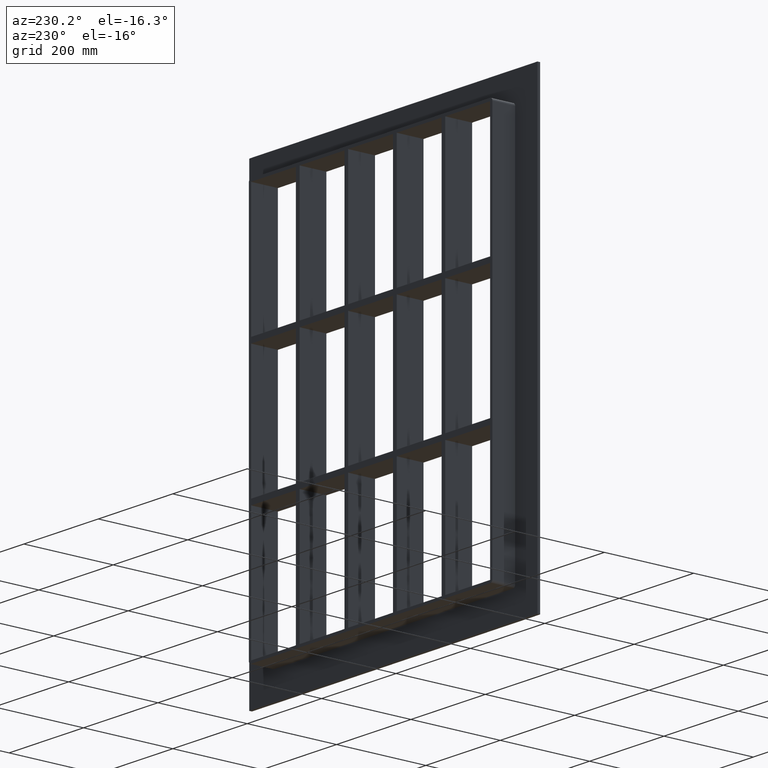
[diagram: clean part render]
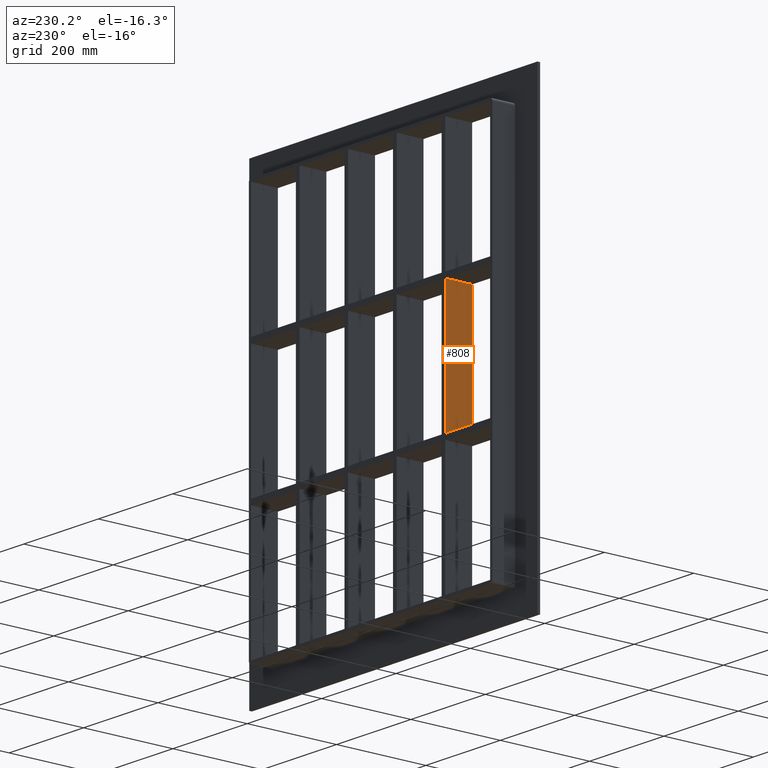
[diagram: same view with one face highlighted and labeled with its STEP entity id]
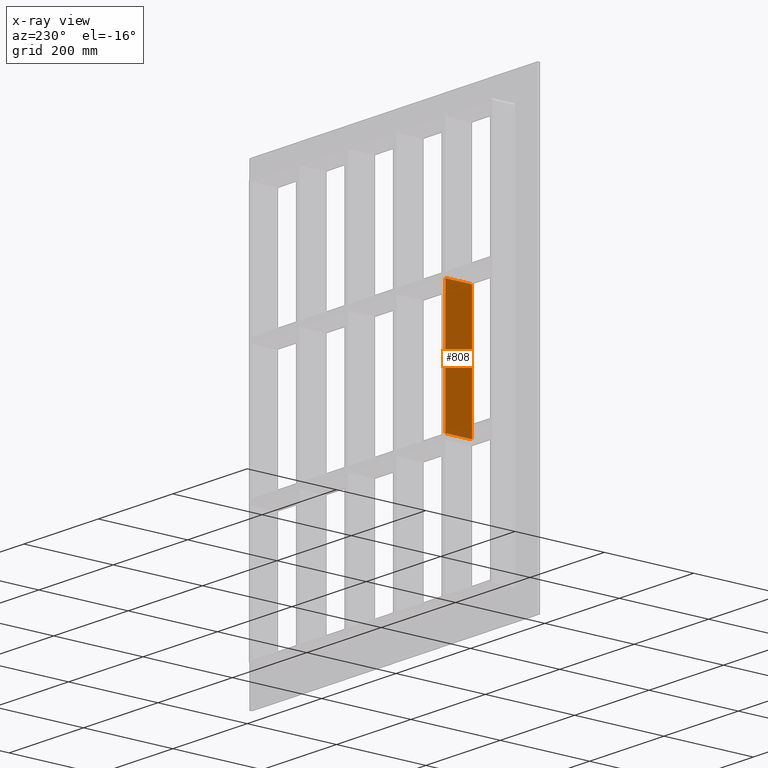
[diagram: x-ray of the same camera — body ghosted, the highlighted face saturated]
A machine part, auxiliary view. The second image highlights one B-rep face of the part: STEP entity #808.
The next image is the same camera in x-ray: the body ghosted, the highlighted face saturated — about 0% of this face is hidden behind the body in this view.
In plain terms, the highlighted planar face has unit normal (-1, 0, 0).
Its self-contained STEP definition (entity closure, byte-faithful):
#73=CARTESIAN_POINT('',(-200.75000000000128,-3.0,138.99999999999068));
#74=VERTEX_POINT('',#73);
#75=CARTESIAN_POINT('',(-200.75000000000128,57.0,138.99999999999068));
#76=VERTEX_POINT('',#75);
#77=CARTESIAN_POINT('',(-200.75000000000128,-3.0,138.99999999999071));
#78=DIRECTION('',(0.0,1.0,0.0));
#79=VECTOR('',#78,60.0);
#80=LINE('',#77,#79);
#81=EDGE_CURVE('',#74,#76,#80,.T.);
#778=CARTESIAN_POINT('',(-200.75000000000125,-3.0,-429.00000000000006));
#779=DIRECTION('',(-1.0,0.0,0.0));
#780=DIRECTION('',(0.0,0.0,1.0));
#781=AXIS2_PLACEMENT_3D('',#778,#779,#780);
#782=PLANE('',#781);
#783=ORIENTED_EDGE('',*,*,#81,.T.);
#784=CARTESIAN_POINT('',(-200.75000000000125,57.0,-139.00000000000006));
#785=VERTEX_POINT('',#784);
#786=CARTESIAN_POINT('',(-200.75000000000128,57.0,-139.00000000000006));
#787=DIRECTION('',(0.0,0.0,1.0));
#788=VECTOR('',#787,277.99999999999068);
#789=LINE('',#786,#788);
#790=EDGE_CURVE('',#785,#76,#789,.T.);
#791=ORIENTED_EDGE('',*,*,#790,.F.);
#792=CARTESIAN_POINT('',(-200.75000000000125,-3.0,-139.00000000000006));
#793=VERTEX_POINT('',#792);
#794=CARTESIAN_POINT('',(-200.75000000000128,57.0,-139.00000000000006));
#795=DIRECTION('',(0.0,-1.0,0.0));
#796=VECTOR('',#795,60.0);
#797=LINE('',#794,#796);
#798=EDGE_CURVE('',#785,#793,#797,.T.);
#799=ORIENTED_EDGE('',*,*,#798,.T.);
#800=CARTESIAN_POINT('',(-200.75000000000128,-3.0,-139.00000000000006));
#801=DIRECTION('',(0.0,0.0,1.0));
#802=VECTOR('',#801,277.99999999999068);
#803=LINE('',#800,#802);
#804=EDGE_CURVE('',#793,#74,#803,.T.);
#805=ORIENTED_EDGE('',*,*,#804,.T.);
#806=EDGE_LOOP('',(#783,#791,#799,#805));
#807=FACE_OUTER_BOUND('',#806,.T.);
#808=ADVANCED_FACE('',(#807),#782,.T.);